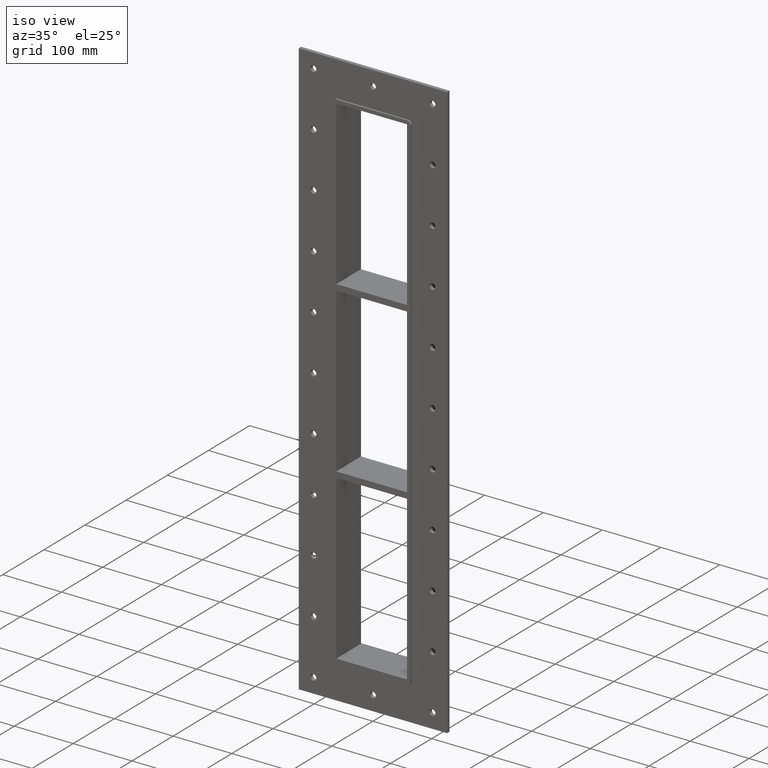
[diagram: clean part render]
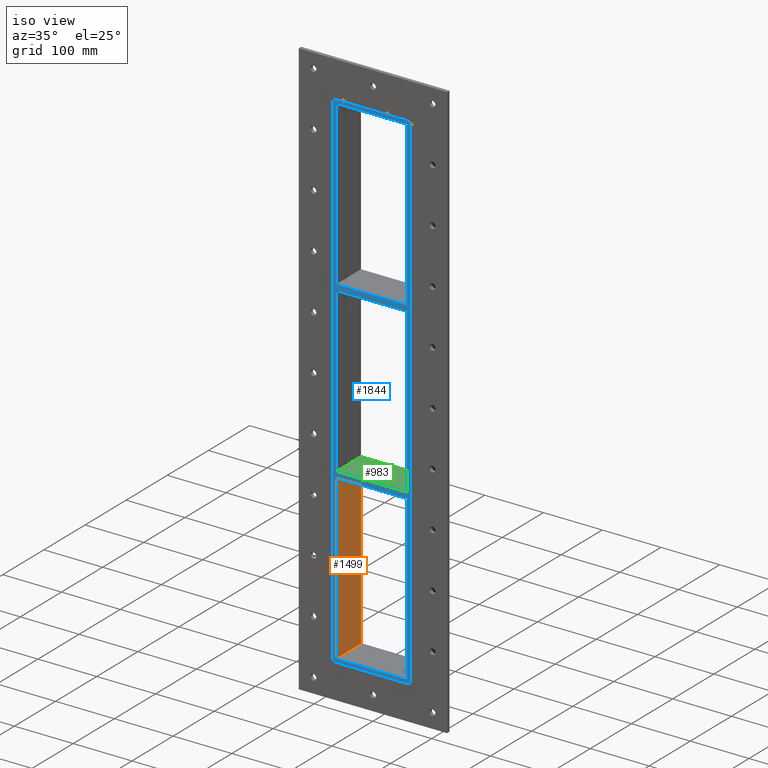
[diagram: same view with three faces highlighted in distinct colors, each labeled with its STEP entity id]
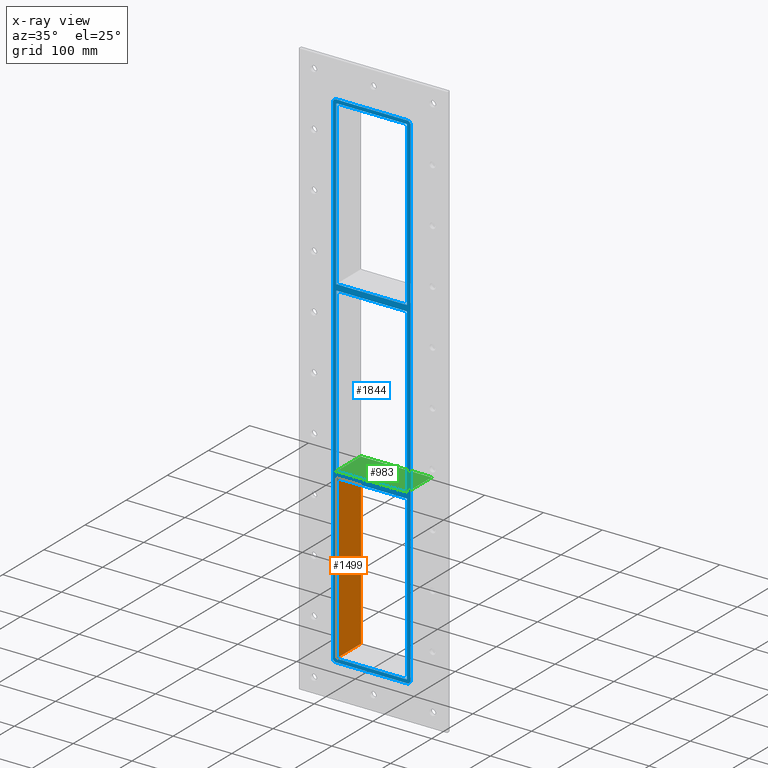
[diagram: x-ray of the same camera — body ghosted, the three highlighted faces saturated]
A machine part, iso view with three faces highlighted in distinct colors.
The next image is the same camera in x-ray (body ghosted, the three faces saturated) — at least one of them is partly hidden behind the body in this view.
Their STEP definitions:

[orange] entity #1499 — the highlighted planar face has unit normal (-1, 0, 0).
#920=CARTESIAN_POINT('',(-60.249999999999666,-3.0,-149.00000000001114));
#921=VERTEX_POINT('',#920);
#928=CARTESIAN_POINT('',(-60.249999999999666,57.0,-149.00000000001114));
#929=VERTEX_POINT('',#928);
#930=CARTESIAN_POINT('',(-60.25,57.000000000000007,-149.00000000001114));
#931=DIRECTION('',(0.0,-1.0,0.0));
#932=VECTOR('',#931,60.000000000000007);
#933=LINE('',#930,#932);
#934=EDGE_CURVE('',#929,#921,#933,.T.);
#1469=CARTESIAN_POINT('',(-60.25,0.0,-427.00000000000011));
#1470=DIRECTION('',(-1.0,0.0,0.0));
#1471=DIRECTION('',(0.0,0.0,1.0));
#1472=AXIS2_PLACEMENT_3D('',#1469,#1470,#1471);
#1473=PLANE('',#1472);
#1474=ORIENTED_EDGE('',*,*,#934,.T.);
#1475=CARTESIAN_POINT('',(-60.249999999999993,-3.0,-427.00000000000011));
#1476=VERTEX_POINT('',#1475);
#1477=CARTESIAN_POINT('',(-60.25,-3.0,-427.00000000000011));
#1478=DIRECTION('',(0.0,0.0,1.0));
#1479=VECTOR('',#1478,277.99999999998897);
#1480=LINE('',#1477,#1479);
#1481=EDGE_CURVE('',#1476,#921,#1480,.T.);
#1482=ORIENTED_EDGE('',*,*,#1481,.F.);
#1483=CARTESIAN_POINT('',(-60.249999999999993,57.0,-427.00000000000011));
#1484=VERTEX_POINT('',#1483);
#1485=CARTESIAN_POINT('',(-60.25,-3.0,-427.00000000000011));
#1486=DIRECTION('',(0.0,1.0,0.0));
#1487=VECTOR('',#1486,60.0);
#1488=LINE('',#1485,#1487);
#1489=EDGE_CURVE('',#1476,#1484,#1488,.T.);
#1490=ORIENTED_EDGE('',*,*,#1489,.T.);
#1491=CARTESIAN_POINT('',(-60.25,57.0,-149.00000000001114));
#1492=DIRECTION('',(0.0,0.0,-1.0));
#1493=VECTOR('',#1492,277.99999999998897);
#1494=LINE('',#1491,#1493);
#1495=EDGE_CURVE('',#929,#1484,#1494,.T.);
#1496=ORIENTED_EDGE('',*,*,#1495,.F.);
#1497=EDGE_LOOP('',(#1474,#1482,#1490,#1496));
#1498=FACE_OUTER_BOUND('',#1497,.T.);
#1499=ADVANCED_FACE('',(#1498),#1473,.F.);

[blue] entity #1844 — the highlighted planar face has unit normal (0, 1, 0).
#745=CARTESIAN_POINT('',(60.249999999996362,-3.0,138.999999999989));
#746=VERTEX_POINT('',#745);
#747=CARTESIAN_POINT('',(-60.249999999999666,-3.0,138.99999999998886));
#748=VERTEX_POINT('',#747);
#749=CARTESIAN_POINT('',(60.249999999996362,-3.0,138.999999999989));
#750=DIRECTION('',(-1.0,0.0,0.0));
#751=VECTOR('',#750,120.49999999999602);
#752=LINE('',#749,#751);
#753=EDGE_CURVE('',#746,#748,#752,.T.);
#785=CARTESIAN_POINT('',(-60.249999999999666,-3.0,148.99999999999994));
#786=VERTEX_POINT('',#785);
#787=CARTESIAN_POINT('',(60.249999999999922,-3.0,148.99999999999994));
#788=VERTEX_POINT('',#787);
#789=CARTESIAN_POINT('',(-60.249999999999666,-3.0,148.99999999999994));
#790=DIRECTION('',(1.0,0.0,0.0));
#791=VECTOR('',#790,120.49999999999957);
#792=LINE('',#789,#791);
#793=EDGE_CURVE('',#786,#788,#792,.T.);
#834=CARTESIAN_POINT('',(-60.249999999999993,-3.0,426.99999999999994));
#835=VERTEX_POINT('',#834);
#842=CARTESIAN_POINT('',(-60.25,-3.0,148.99999999999991));
#843=DIRECTION('',(0.0,0.0,1.0));
#844=VECTOR('',#843,278.00000000000011);
#845=LINE('',#842,#844);
#846=EDGE_CURVE('',#786,#835,#845,.T.);
#865=CARTESIAN_POINT('',(60.249999999999922,-3.0,-139.00000000000006));
#866=VERTEX_POINT('',#865);
#873=CARTESIAN_POINT('',(60.250000000000014,-3.0,138.999999999989));
#874=DIRECTION('',(0.0,0.0,-1.0));
#875=VECTOR('',#874,277.99999999998903);
#876=LINE('',#873,#875);
#877=EDGE_CURVE('',#746,#866,#876,.T.);
#888=CARTESIAN_POINT('',(60.250000000000014,-3.0,426.99999999999994));
#889=VERTEX_POINT('',#888);
#890=CARTESIAN_POINT('',(60.250000000000014,-3.0,426.99999999999994));
#891=DIRECTION('',(0.0,0.0,-1.0));
#892=VECTOR('',#891,278.0);
#893=LINE('',#890,#892);
#894=EDGE_CURVE('',#889,#788,#893,.T.);
#918=CARTESIAN_POINT('',(60.249999999996362,-3.0,-149.000000000011));
#919=VERTEX_POINT('',#918);
#920=CARTESIAN_POINT('',(-60.249999999999666,-3.0,-149.00000000001114));
#921=VERTEX_POINT('',#920);
#922=CARTESIAN_POINT('',(60.249999999996362,-3.0,-149.000000000011));
#923=DIRECTION('',(-1.0,0.0,0.0));
#924=VECTOR('',#923,120.49999999999602);
#925=LINE('',#922,#924);
#926=EDGE_CURVE('',#919,#921,#925,.T.);
#958=CARTESIAN_POINT('',(-60.249999999999666,-3.0,-139.00000000000006));
#959=VERTEX_POINT('',#958);
#960=CARTESIAN_POINT('',(-60.249999999999666,-3.0,-139.00000000000006));
#961=DIRECTION('',(1.0,0.0,0.0));
#962=VECTOR('',#961,120.49999999999957);
#963=LINE('',#960,#962);
#964=EDGE_CURVE('',#959,#866,#963,.T.);
#990=CARTESIAN_POINT('',(-60.25,-3.0,-139.00000000000006));
#991=DIRECTION('',(0.0,0.0,1.0));
#992=VECTOR('',#991,277.99999999998886);
#993=LINE('',#990,#992);
#994=EDGE_CURVE('',#959,#748,#993,.T.);
#1020=CARTESIAN_POINT('',(60.250000000000014,-3.0,-427.00000000000011));
#1021=VERTEX_POINT('',#1020);
#1028=CARTESIAN_POINT('',(60.250000000000014,-3.0,-149.00000000001094));
#1029=DIRECTION('',(0.0,0.0,-1.0));
#1030=VECTOR('',#1029,277.9999999999892);
#1031=LINE('',#1028,#1030);
#1032=EDGE_CURVE('',#919,#1021,#1031,.T.);
#1475=CARTESIAN_POINT('',(-60.249999999999993,-3.0,-427.00000000000011));
#1476=VERTEX_POINT('',#1475);
#1477=CARTESIAN_POINT('',(-60.25,-3.0,-427.00000000000011));
#1478=DIRECTION('',(0.0,0.0,1.0));
#1479=VECTOR('',#1478,277.99999999998897);
#1480=LINE('',#1477,#1479);
#1481=EDGE_CURVE('',#1476,#921,#1480,.T.);
#1506=CARTESIAN_POINT('',(60.25,-3.0,433.0));
#1507=VERTEX_POINT('',#1506);
#1514=CARTESIAN_POINT('',(66.25,-3.0,426.99999999999994));
#1515=VERTEX_POINT('',#1514);
#1516=CARTESIAN_POINT('',(60.25,-3.0,426.99999999999994));
#1517=DIRECTION('',(0.0,1.0,0.0));
#1518=DIRECTION('',(0.707106781186542,0.0,0.707106781186553));
#1519=AXIS2_PLACEMENT_3D('',#1516,#1517,#1518);
#1520=CIRCLE('',#1519,6.000000000000001);
#1521=EDGE_CURVE('',#1507,#1515,#1520,.T.);
#1571=CARTESIAN_POINT('',(66.25,-3.0,-427.0));
#1572=VERTEX_POINT('',#1571);
#1573=CARTESIAN_POINT('',(66.25,-3.0,-427.0));
#1574=DIRECTION('',(0.0,0.0,1.0));
#1575=VECTOR('',#1574,854.0);
#1576=LINE('',#1573,#1575);
#1577=EDGE_CURVE('',#1572,#1515,#1576,.T.);
#1618=CARTESIAN_POINT('',(-60.25,-3.0,433.0));
#1619=VERTEX_POINT('',#1618);
#1626=CARTESIAN_POINT('',(60.25,-3.0,433.0));
#1627=DIRECTION('',(-1.0,0.0,0.0));
#1628=VECTOR('',#1627,120.5);
#1629=LINE('',#1626,#1628);
#1630=EDGE_CURVE('',#1507,#1619,#1629,.T.);
#1643=CARTESIAN_POINT('',(60.25,-3.0,-433.00000000000011));
#1644=VERTEX_POINT('',#1643);
#1645=CARTESIAN_POINT('',(60.25,-3.0,-427.0));
#1646=DIRECTION('',(0.0,1.0,0.0));
#1647=DIRECTION('',(0.707106781186542,0.0,-0.707106781186553));
#1648=AXIS2_PLACEMENT_3D('',#1645,#1646,#1647);
#1649=CIRCLE('',#1648,6.000000000000001);
#1650=EDGE_CURVE('',#1572,#1644,#1649,.T.);
#1692=CARTESIAN_POINT('',(-66.25,-3.0,426.99999999999989));
#1693=VERTEX_POINT('',#1692);
#1700=CARTESIAN_POINT('',(-60.25,-3.0,426.99999999999989));
#1701=DIRECTION('',(0.0,1.0,0.0));
#1702=DIRECTION('',(-0.707106781186542,0.0,0.707106781186553));
#1703=AXIS2_PLACEMENT_3D('',#1700,#1701,#1702);
#1704=CIRCLE('',#1703,6.000000000000001);
#1705=EDGE_CURVE('',#1693,#1619,#1704,.T.);
#1718=CARTESIAN_POINT('',(-60.25,-3.0,-433.00000000000011));
#1719=VERTEX_POINT('',#1718);
#1720=CARTESIAN_POINT('',(-60.25,-3.0,-433.00000000000011));
#1721=DIRECTION('',(1.0,0.0,0.0));
#1722=VECTOR('',#1721,120.5);
#1723=LINE('',#1720,#1722);
#1724=EDGE_CURVE('',#1719,#1644,#1723,.T.);
#1765=CARTESIAN_POINT('',(-66.25,-3.0,-427.00000000000017));
#1766=VERTEX_POINT('',#1765);
#1773=CARTESIAN_POINT('',(-66.25,-3.0,426.99999999999989));
#1774=DIRECTION('',(0.0,0.0,-1.0));
#1775=VECTOR('',#1774,854.0);
#1776=LINE('',#1773,#1775);
#1777=EDGE_CURVE('',#1693,#1766,#1776,.T.);
#1790=CARTESIAN_POINT('',(-60.25,-3.0,-427.00000000000017));
#1791=DIRECTION('',(0.0,1.0,0.0));
#1792=DIRECTION('',(-0.707106781186551,0.0,-0.707106781186544));
#1793=AXIS2_PLACEMENT_3D('',#1790,#1791,#1792);
#1794=CIRCLE('',#1793,6.0);
#1795=EDGE_CURVE('',#1719,#1766,#1794,.T.);
#1801=CARTESIAN_POINT('',(0.0,-3.0,-6.831457E-014));
#1802=DIRECTION('',(0.0,1.0,0.0));
#1803=DIRECTION('',(0.0,0.0,1.0));
#1804=AXIS2_PLACEMENT_3D('',#1801,#1802,#1803);
#1805=PLANE('',#1804);
#1806=ORIENTED_EDGE('',*,*,#1650,.F.);
#1807=ORIENTED_EDGE('',*,*,#1577,.T.);
#1808=ORIENTED_EDGE('',*,*,#1521,.F.);
#1809=ORIENTED_EDGE('',*,*,#1630,.T.);
#1810=ORIENTED_EDGE('',*,*,#1705,.F.);
#1811=ORIENTED_EDGE('',*,*,#1777,.T.);
#1812=ORIENTED_EDGE('',*,*,#1795,.F.);
#1813=ORIENTED_EDGE('',*,*,#1724,.T.);
#1814=EDGE_LOOP('',(#1806,#1807,#1808,#1809,#1810,#1811,#1812,#1813));
#1815=FACE_OUTER_BOUND('',#1814,.T.);
#1816=ORIENTED_EDGE('',*,*,#846,.T.);
#1817=CARTESIAN_POINT('',(-60.249999999999993,-3.0,427.0));
#1818=DIRECTION('',(1.0,0.0,0.0));
#1819=VECTOR('',#1818,120.5);
#1820=LINE('',#1817,#1819);
#1821=EDGE_CURVE('',#835,#889,#1820,.T.);
#1822=ORIENTED_EDGE('',*,*,#1821,.T.);
#1823=ORIENTED_EDGE('',*,*,#894,.T.);
#1824=ORIENTED_EDGE('',*,*,#793,.F.);
#1825=EDGE_LOOP('',(#1816,#1822,#1823,#1824));
#1826=FACE_BOUND('',#1825,.T.);
#1827=ORIENTED_EDGE('',*,*,#753,.F.);
#1828=ORIENTED_EDGE('',*,*,#877,.T.);
#1829=ORIENTED_EDGE('',*,*,#964,.F.);
#1830=ORIENTED_EDGE('',*,*,#994,.T.);
#1831=EDGE_LOOP('',(#1827,#1828,#1829,#1830));
#1832=FACE_BOUND('',#1831,.T.);
#1833=ORIENTED_EDGE('',*,*,#926,.F.);
#1834=ORIENTED_EDGE('',*,*,#1032,.T.);
#1835=CARTESIAN_POINT('',(60.250000000000014,-3.0,-427.00000000000011));
#1836=DIRECTION('',(-1.0,0.0,0.0));
#1837=VECTOR('',#1836,120.5);
#1838=LINE('',#1835,#1837);
#1839=EDGE_CURVE('',#1021,#1476,#1838,.T.);
#1840=ORIENTED_EDGE('',*,*,#1839,.T.);
#1841=ORIENTED_EDGE('',*,*,#1481,.T.);
#1842=EDGE_LOOP('',(#1833,#1834,#1840,#1841));
#1843=FACE_BOUND('',#1842,.T.);
#1844=ADVANCED_FACE('',(#1815,#1826,#1832,#1843),#1805,.F.);

[green] entity #983 — the highlighted planar face has unit normal (0, 0, 1).
#857=CARTESIAN_POINT('',(60.249999999999915,57.0,-139.00000000000006));
#858=VERTEX_POINT('',#857);
#865=CARTESIAN_POINT('',(60.249999999999922,-3.0,-139.00000000000006));
#866=VERTEX_POINT('',#865);
#867=CARTESIAN_POINT('',(60.250000000000021,57.000000000000007,-139.00000000000006));
#868=DIRECTION('',(0.0,-1.0,0.0));
#869=VECTOR('',#868,60.000000000000007);
#870=LINE('',#867,#869);
#871=EDGE_CURVE('',#858,#866,#870,.T.);
#953=CARTESIAN_POINT('',(-60.249999999999666,-3.0,-139.00000000000006));
#954=DIRECTION('',(0.0,0.0,1.0));
#955=DIRECTION('',(1.0,0.0,0.0));
#956=AXIS2_PLACEMENT_3D('',#953,#954,#955);
#957=PLANE('',#956);
#958=CARTESIAN_POINT('',(-60.249999999999666,-3.0,-139.00000000000006));
#959=VERTEX_POINT('',#958);
#960=CARTESIAN_POINT('',(-60.249999999999666,-3.0,-139.00000000000006));
#961=DIRECTION('',(1.0,0.0,0.0));
#962=VECTOR('',#961,120.49999999999957);
#963=LINE('',#960,#962);
#964=EDGE_CURVE('',#959,#866,#963,.T.);
#965=ORIENTED_EDGE('',*,*,#964,.T.);
#966=ORIENTED_EDGE('',*,*,#871,.F.);
#967=CARTESIAN_POINT('',(-60.249999999999666,57.0,-139.00000000000006));
#968=VERTEX_POINT('',#967);
#969=CARTESIAN_POINT('',(-60.249999999999666,57.0,-139.00000000000006));
#970=DIRECTION('',(1.0,0.0,0.0));
#971=VECTOR('',#970,120.49999999999957);
#972=LINE('',#969,#971);
#973=EDGE_CURVE('',#968,#858,#972,.T.);
#974=ORIENTED_EDGE('',*,*,#973,.F.);
#975=CARTESIAN_POINT('',(-60.25,-3.0,-139.00000000000006));
#976=DIRECTION('',(0.0,1.0,0.0));
#977=VECTOR('',#976,60.000000000000007);
#978=LINE('',#975,#977);
#979=EDGE_CURVE('',#959,#968,#978,.T.);
#980=ORIENTED_EDGE('',*,*,#979,.F.);
#981=EDGE_LOOP('',(#965,#966,#974,#980));
#982=FACE_OUTER_BOUND('',#981,.T.);
#983=ADVANCED_FACE('',(#982),#957,.T.);